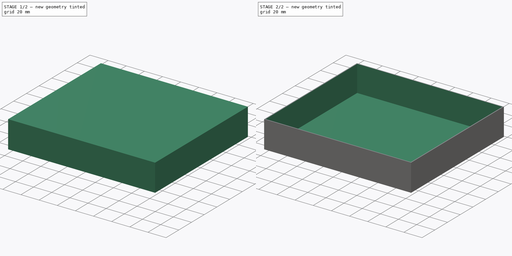
[diagram: build sequence overview — one tinted view per stage of 2, left to right]
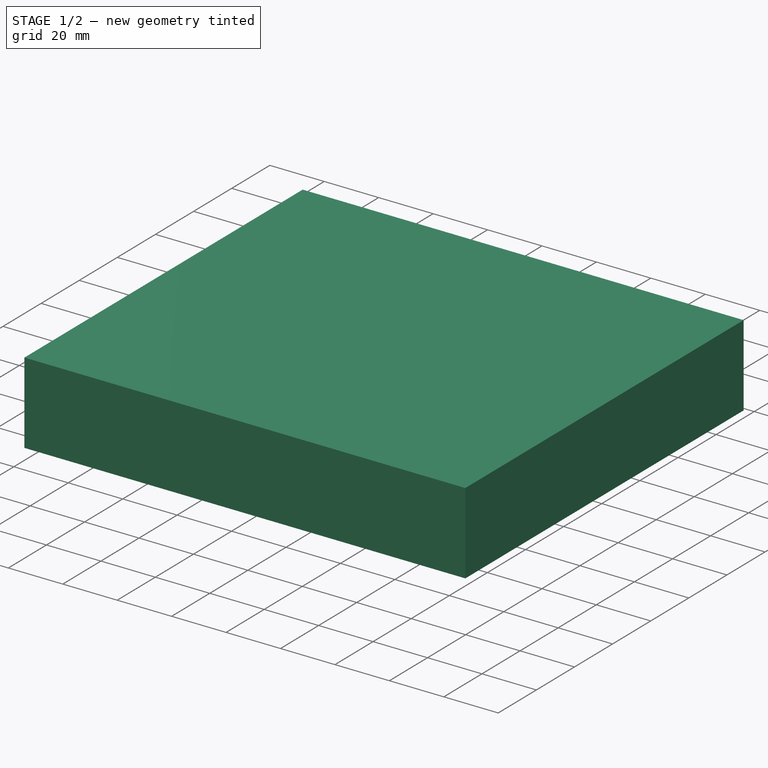
[diagram: stage 1 of 2 — iso view after this stage's code; geometry added in this stage tinted green]
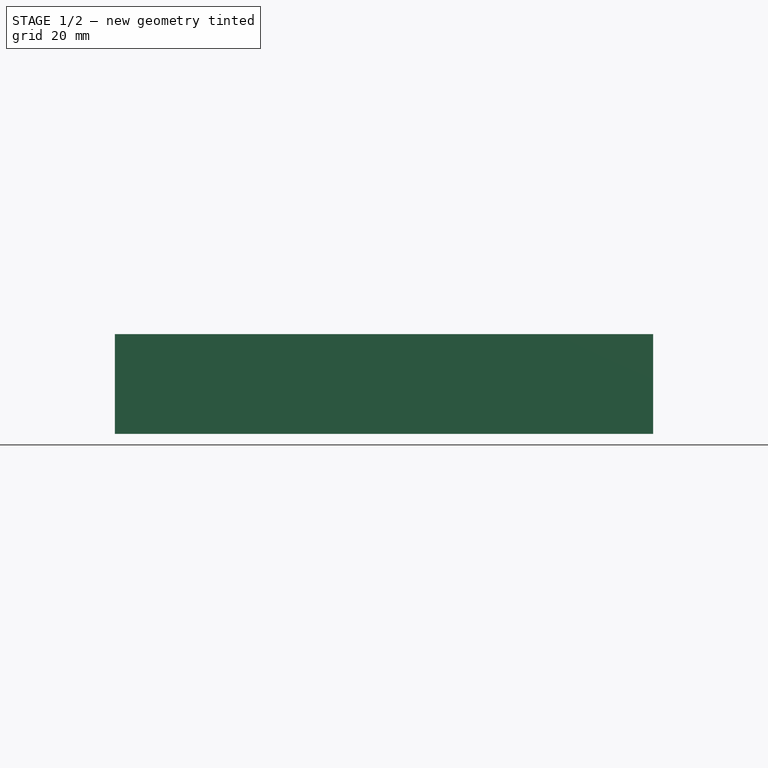
[diagram: stage 1 of 2 — front view after this stage's code; geometry added in this stage tinted green]
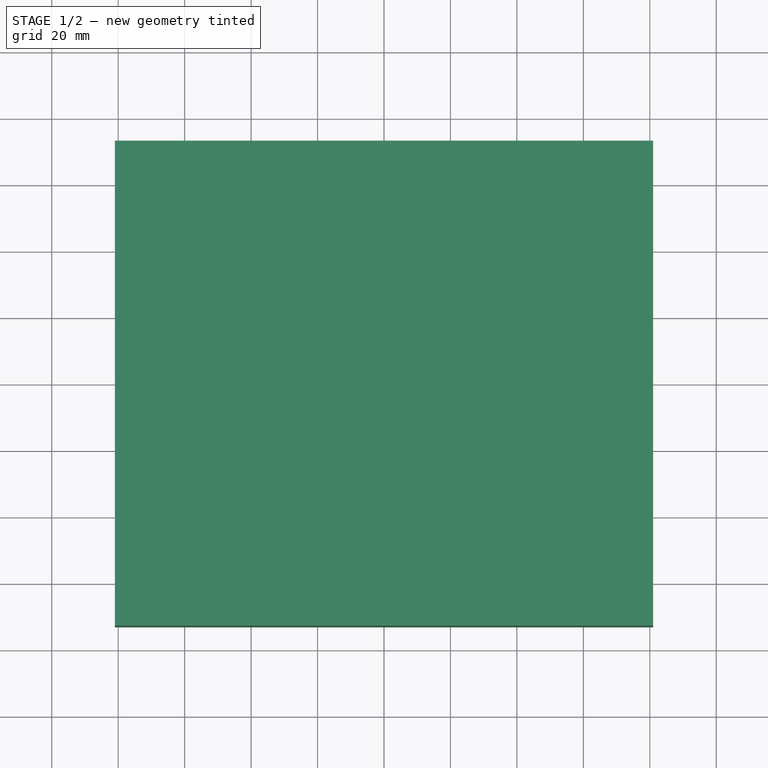
[diagram: stage 1 of 2 — top view after this stage's code; geometry added in this stage tinted green]
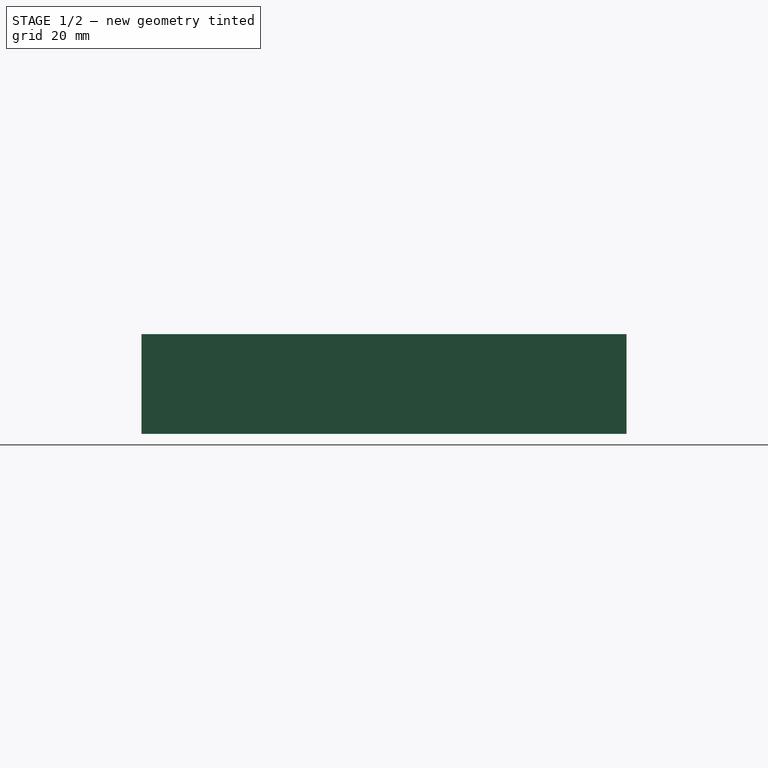
[diagram: stage 1 of 2 — right view after this stage's code; geometry added in this stage tinted green]
FCSTD DOCUMENT  (FreeCAD 1.0R39319 (Git))
Label: Eric mech
License: All rights reserved
LicenseURL: https://en.wikipedia.org/wiki/All_rights_reserved
objects: Part::Feature×3, App::Part×3, PartDesign::ShapeBinder×1, Sketcher::SketchObject×1, PartDesign::Pad×1, PartDesign::Thickness×1, PartDesign::Body×1
note: 13 computed .brp shape members not serialized (recipe doc carries the construction recipe); baked Part::Feature solids carry a one-line shape summary decoded from their .brp

FEATURE [Part::Feature] Part__Feature  label="Pad_001_sp"
  shape: bbox 80 x 36 x 15 mm, 210 faces (baked)
FEATURE [App::Part] WC1602A
  Group = -> [Part__Feature]
  Origin = -> Origin001
  Placement = pos=(88.5,-114.642,1.65) rot=(0,0,1;0rad)
FEATURE [Part::Feature] Part__Feature001  label="Aosong_DHT11_5.5x12.0_P2.54mm"
  shape: bbox 5.5 x 12 x 23.5 mm, 289 faces (baked)
FEATURE [App::Part] Aosong_DHT11_5_5x12_0_P2_54mm  label="Aosong_DHT11_5.5x12.0_P2.54mm001"
  Group = -> [Part__Feature001]
  Origin = -> Origin002
  Placement = pos=(83.5,-69.46,1.65) rot=(0,0,1;0rad)
FEATURE [Part::Feature] Part__Feature002  label="Slaughter house_PCB"
  shape: bbox 159 x 144 x 1.6 mm, 60 faces (baked)
FEATURE [App::Part] Slaughter_house_1  label="Slaughter house 1"
  Group = -> [WC1602A,Aosong_DHT11_5_5x12_0_P2_54mm,Part__Feature002]
  Origin = -> Origin003
  Placement = pos=(-127,86,9) rot=(0,0,1;0rad)
FEATURE [PartDesign::ShapeBinder] CopyPart__Feature002
  TraceSupport = false
FEATURE [Sketcher::SketchObject] Sketch
  ArcFitTolerance = 1e-06
  AttachmentSupport = -> [CopyPart__Feature002]
  FullyConstrained = true
  MakeInternals = false
  MapMode = 5
  Placement = pos=(0,0,1.6) rot=(0,0,1;0rad)
  sketch-geometry (5):
    g0: LineSegment StartX=-81 StartY=-73 StartZ=0 EndX=81 EndY=-73 EndZ=0
    g1: LineSegment StartX=81 StartY=-73 StartZ=0 EndX=81 EndY=73 EndZ=0
    g2: LineSegment StartX=81 StartY=73 StartZ=0 EndX=-81 EndY=73 EndZ=0
    g3: LineSegment StartX=-81 StartY=73 StartZ=0 EndX=-81 EndY=-73 EndZ=0
    g4: GeomPoint [constr] X=0 Y=0 Z=0
  constraints (12):
    c: Coincident(g0,g1)
    c: Coincident(g1,g2)
    c: Coincident(g2,g3)
    c: Coincident(g3,g0)
    c: Horizontal(g0)
    c: Horizontal(g2)
    c: Vertical(g1)
    c: Vertical(g3)
    c: Symmetric(g2,g0,g4)
    c: Distance(g1,g3) = 162
    c: Distance(g0,g2) = 146
    c: Coincident(g4,g-1)
FEATURE [PartDesign::Pad] Pad
  Direction = (0,0,1)
  Length = 30
  Length2 = 10
  Profile = -> Sketch
  ReferenceAxis = -> Sketch [N_Axis]
  Refine = true
  Suppressed = false
  Type = 0
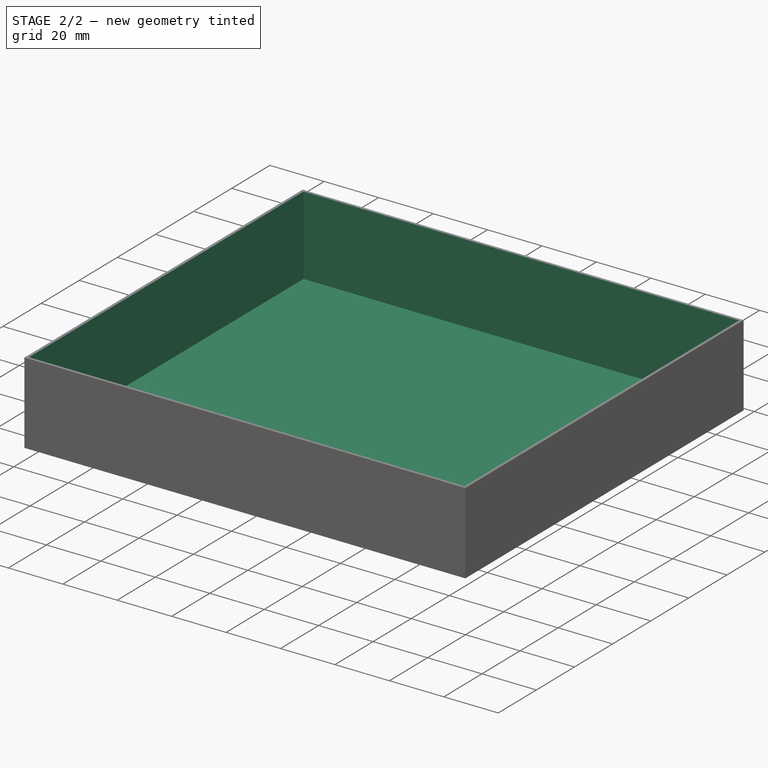
[diagram: stage 2 of 2 — iso view after this stage's code; geometry added in this stage tinted green]
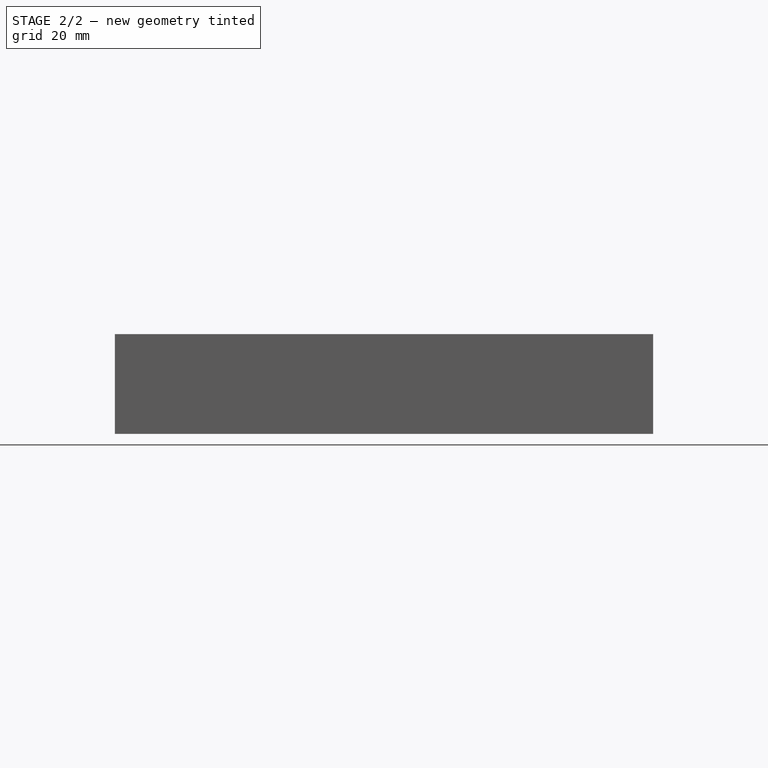
[diagram: stage 2 of 2 — front view after this stage's code; geometry added in this stage tinted green]
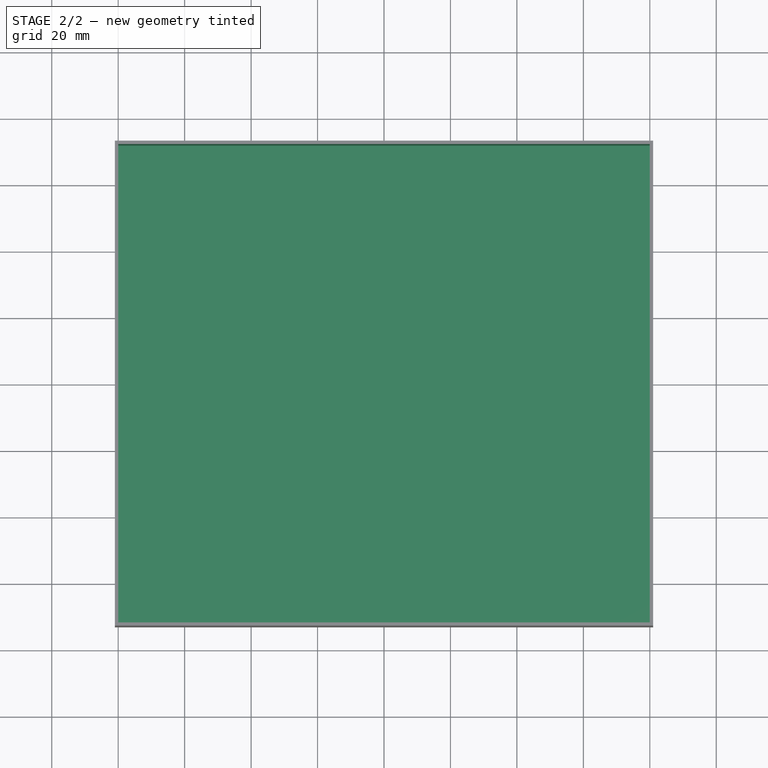
[diagram: stage 2 of 2 — top view after this stage's code; geometry added in this stage tinted green]
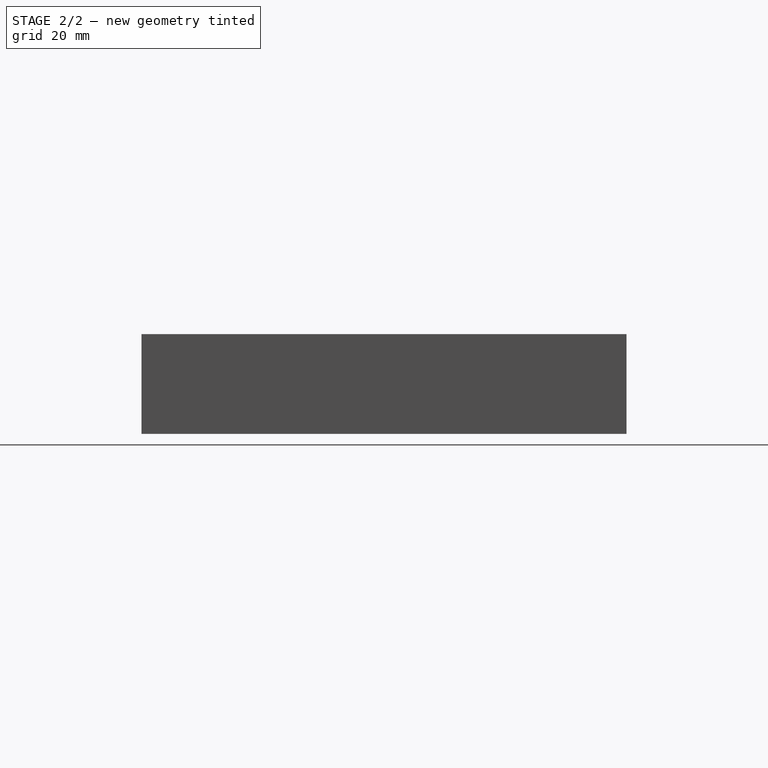
[diagram: stage 2 of 2 — right view after this stage's code; geometry added in this stage tinted green]
FEATURE [PartDesign::Thickness] Thickness
  Base = -> Pad [Face6]
  BaseFeature = -> Pad
  Intersection = false
  Join = 0
  Mode = 0
  Refine = true
  Reversed = true
  SupportTransform = false
  Suppressed = false
  Value = 1
FEATURE [PartDesign::Body] Body
  AllowCompound = false
  Group = -> [CopyPart__Feature002,Sketch,Pad,Thickness]
  Origin = -> Origin
  Tip = -> Thickness
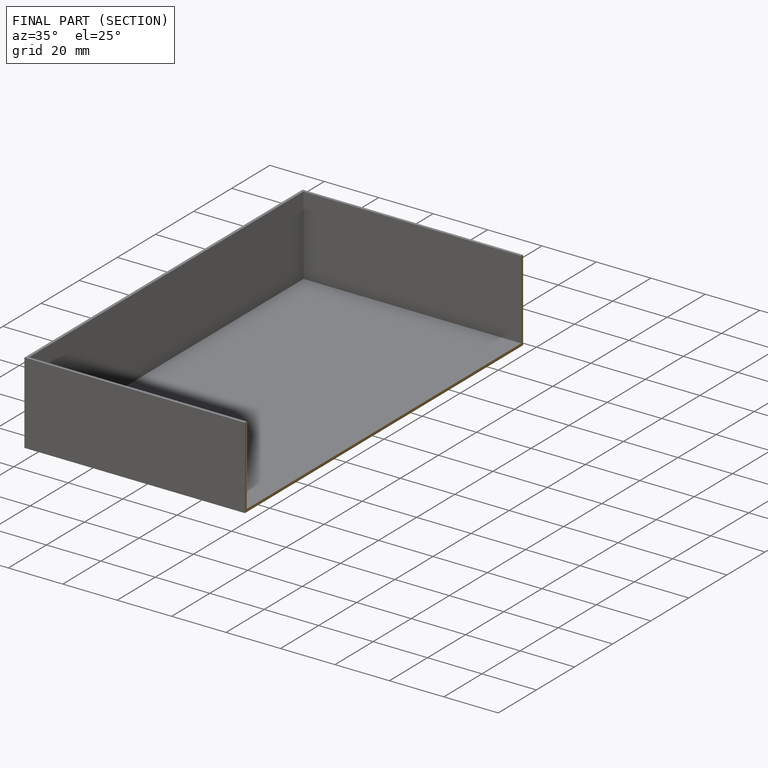
[diagram: finished part — half-section view (interior)]
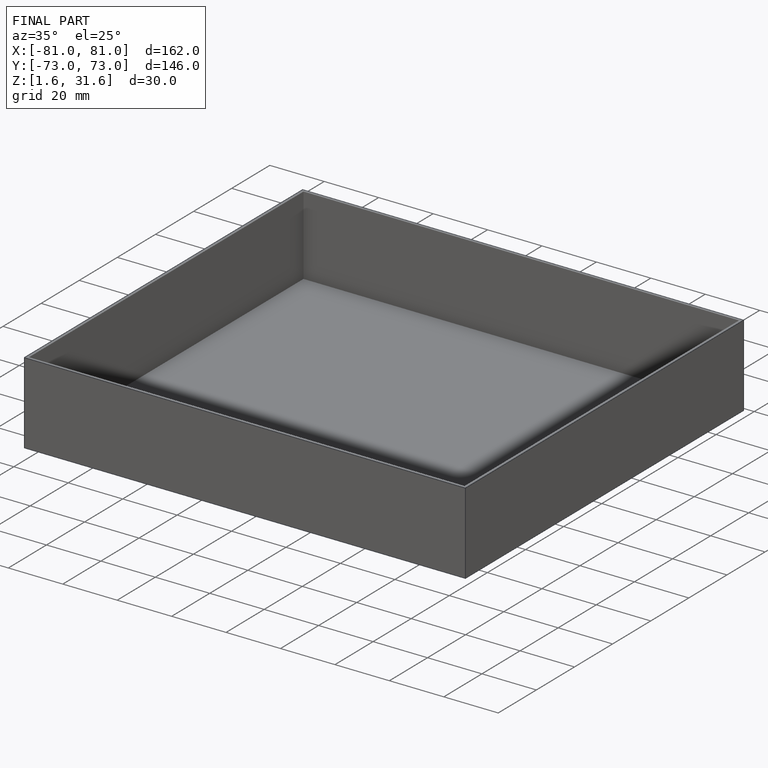
[diagram: finished part — iso view with bounding-box wireframe]
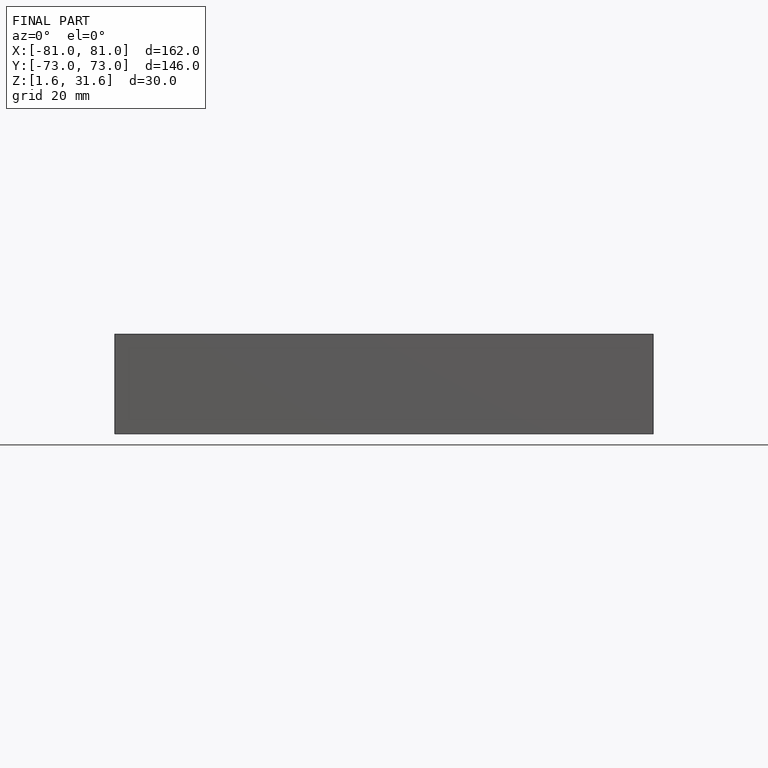
[diagram: finished part — front view with bounding-box wireframe]
